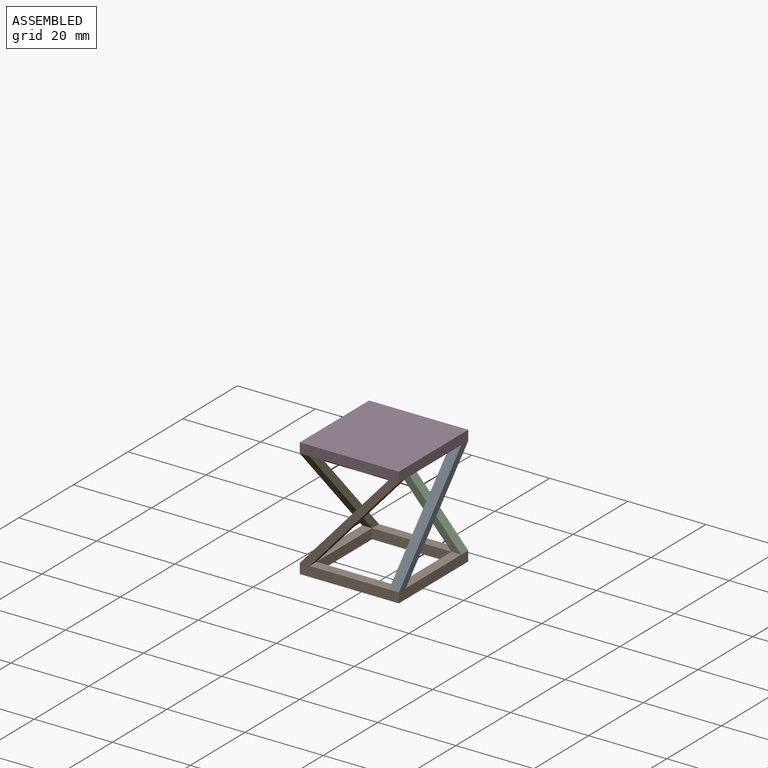
[diagram: assembled view]
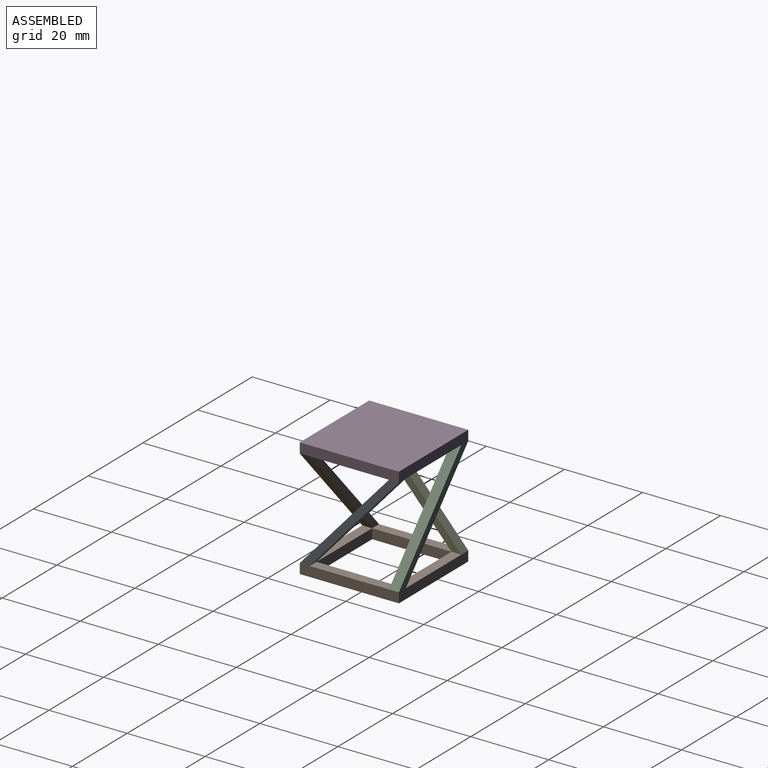
[diagram: assembled view, second angle]
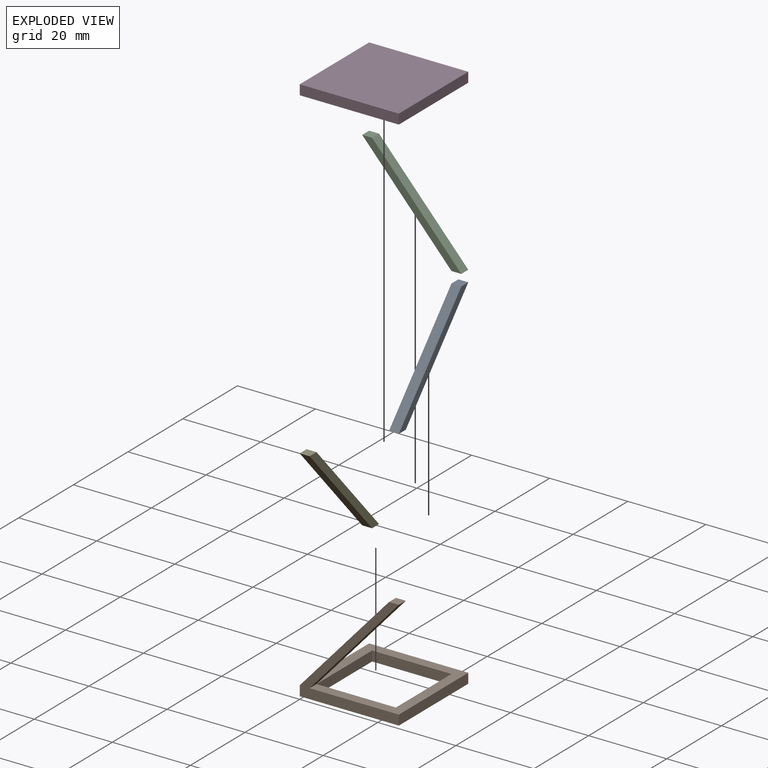
[diagram: exploded view]
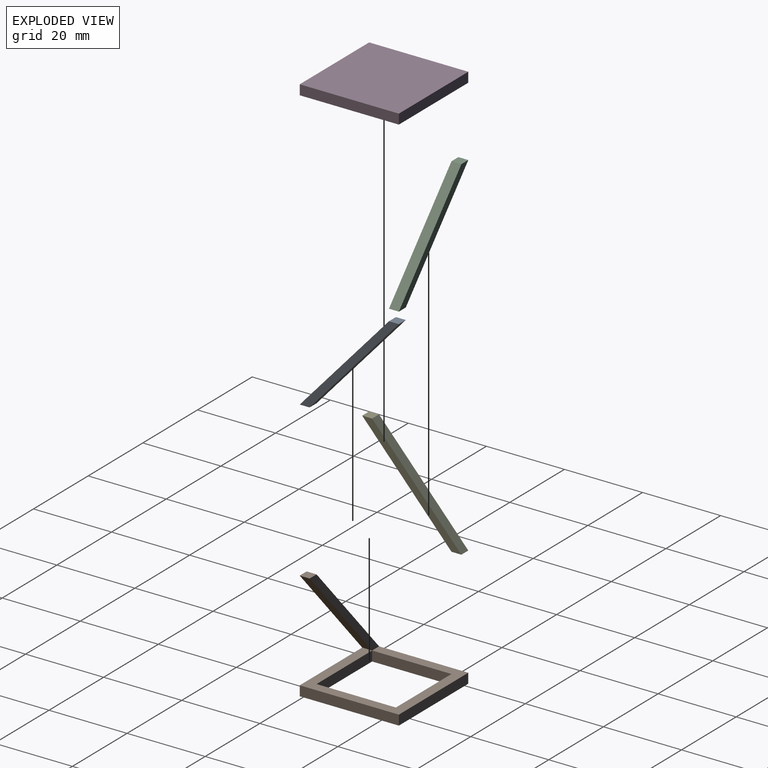
[diagram: exploded view, second angle]
ASSEMBLY  parts=5 mates=4
PART A: 6 faces, bbox 25.4x2.5x25.4 mm
  f0: plane 25.4x25.4mm, normal (0,-1,0), area 64.2mm2, adj f1,f3,f4,f5
  f1: plane 2.54x2.53mm, normal (0,0,1), area 6.4mm2, adj f0,f2,f3,f4
  f2: plane 25.4x25.4mm, normal (0,1,0), area 64.2mm2, adj f1,f3,f4,f5
  f3: plane 25.4x22.87mm, normal (-0.74,0,0.67), area 86.8mm2, adj f0,f1,f2,f5
  f4: plane 25.4x22.87mm, normal (0.74,0,-0.67), area 86.8mm2, adj f0,f1,f2,f5
  f5: plane 2.54x2.53mm, normal (0,0,-1), area 6.4mm2, adj f0,f2,f3,f4
PART B: 14 faces, bbox 25.4x25.4x27.9 mm
  f0: plane 27.94x25.4mm, normal (0,-1,0), area 128.8mm2, adj f1,f3,f4,f5,f6,f12,f13
  f1: plane 2.54x2.53mm, normal (0,0,1), area 6.4mm2, adj f0,f2,f12,f13
  f2: plane 25.4x25.4mm, normal (0,1,0), area 64.2mm2, adj f1,f3,f12,f13
  f3: plane 25.4x25.4mm, normal (0,0,1), area 225.8mm2, adj f0,f2,f5,f6,f7,f8,f9,f10
  f4: plane 25.4x25.4mm, normal (0,0,-1), area 232.3mm2, adj f0,f5,f6,f7,f8,f9,f10,f11
  f5: plane 25.4x2.54mm, normal (-1,0,0), area 64.5mm2, adj f0,f3,f4,f7,f12
  f6: plane 25.4x2.54mm, normal (1,0,0), area 64.5mm2, adj f0,f3,f4,f7
  f7: plane 25.4x2.54mm, normal (0,1,0), area 64.5mm2, adj f3,f4,f5,f6
  f8: plane 20.32x2.54mm, normal (0,-1,0), area 51.6mm2, adj f3,f4,f9,f11
  f9: plane 20.32x2.54mm, normal (1,0,0), area 51.6mm2, adj f3,f4,f8,f10
  f10: plane 20.32x2.54mm, normal (0,1,0), area 51.6mm2, adj f3,f4,f9,f11
  f11: plane 20.32x2.54mm, normal (-1,0,0), area 51.6mm2, adj f3,f4,f8,f10
  f12: plane 25.4x22.87mm, normal (-0.74,0,0.67), area 86.8mm2, adj f0,f1,f2,f5
  f13: plane 25.4x22.87mm, normal (0.74,0,-0.67), area 86.8mm2, adj f0,f1,f2,f3
PART C: same geometry as A
PART D: 6 faces, bbox 25.4x25.4x2.5 mm
  f0: plane 25.4x2.54mm, normal (-1,0,0), area 64.5mm2, adj f1,f3,f4,f5
  f1: plane 25.4x2.54mm, normal (0,-1,0), area 64.5mm2, adj f0,f2,f4,f5
  f2: plane 25.4x2.54mm, normal (1,0,0), area 64.5mm2, adj f1,f3,f4,f5
  f3: plane 25.4x2.54mm, normal (0,1,0), area 64.5mm2, adj f0,f2,f4,f5
  f4: plane 25.4x25.4mm, normal (0,0,1), area 645.2mm2, adj f0,f1,f2,f3
  f5: plane 25.4x25.4mm, normal (0,0,-1), area 645.2mm2, adj f0,f1,f2,f3
PART E: same geometry as A
PLACE A rot(axis=(0,0,1),90deg) t=(25.4,0,0)mm
PLACE B at identity
PLACE C rot(axis=(0,0,1),180deg) t=(25.4,25.4,0)mm
PLACE D t=(0,0,27.94)mm
PLACE E rot(axis=(0,0,-1),90deg) t=(0,25.4,0)mm
MATE fastened E.f5 <-> B.f3  axis (0,0,1) through (0,25.4,2.54)mm
MATE fastened D.f5 <-> A.f1  axis (0,0,1) through (25.4,25.4,27.94)mm
MATE fastened A.f5 <-> B.f3  axis (0,0,1) through (25.4,0,2.54)mm
MATE fastened C.f5 <-> B.f3  axis (0,0,1) through (25.4,25.4,2.54)mm
